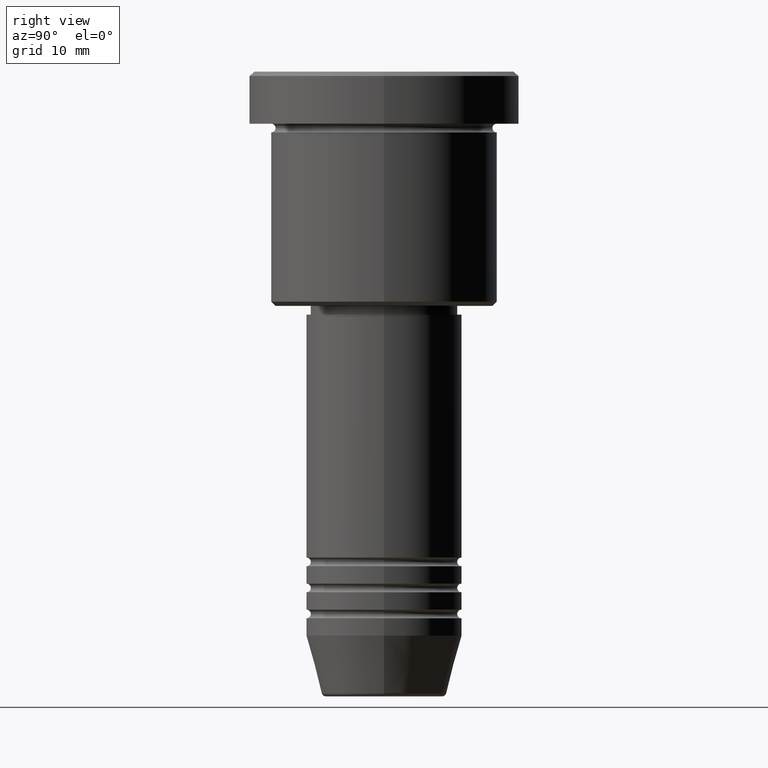
[diagram: clean part render]
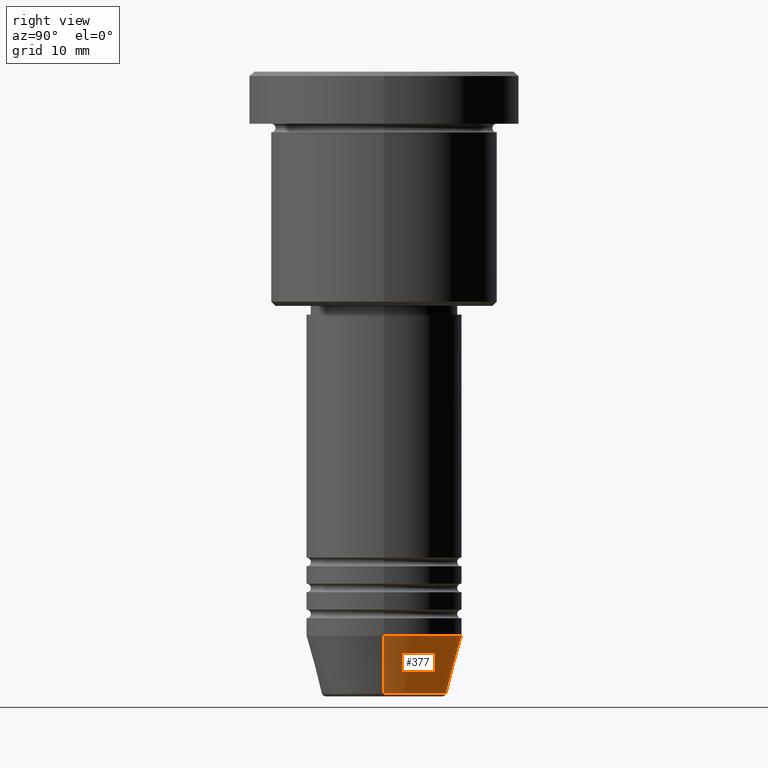
[diagram: same view with one face highlighted and labeled with its STEP entity id]
A machine part, right view. The second image highlights one B-rep face of the part: STEP entity #377.
In plain terms, the highlighted conical surface has half-angle 15 deg.
Its self-contained STEP definition (entity closure, byte-faithful):
#2 = DIRECTION ( 'NONE',  ( -0.2588190451025213501, 3.169619151431772337E-17, 0.9659258262890680902 ) ) ;
#16 = DIRECTION ( 'NONE',  ( 1.000000000000000000, 0.000000000000000000, 0.000000000000000000 ) ) ;
#70 = VECTOR ( 'NONE', #710, 1000.000000000000000 ) ;
#72 = CONICAL_SURFACE ( 'NONE', #383, 9.000000000000000000, 0.2617993877991500740 ) ;
#74 = VERTEX_POINT ( 'NONE', #444 ) ;
#96 = LINE ( 'NONE', #1170, #291 ) ;
#103 = EDGE_CURVE ( 'NONE', #534, #284, #262, .T. ) ;
#148 = ORIENTED_EDGE ( 'NONE', *, *, #755, .T. ) ;
#262 = LINE ( 'NONE', #331, #70 ) ;
#284 = VERTEX_POINT ( 'NONE', #633 ) ;
#291 = VECTOR ( 'NONE', #2, 1000.000000000000000 ) ;
#307 = DIRECTION ( 'NONE',  ( -0.000000000000000000, -0.000000000000000000, 1.000000000000000000 ) ) ;
#331 = CARTESIAN_POINT ( 'NONE',  ( 9.000000000000000000, 0.000000000000000000, -65.00000000000000000 ) ) ;
#355 = EDGE_CURVE ( 'NONE', #284, #488, #406, .T. ) ;
#377 = ADVANCED_FACE ( 'NONE', ( #568 ), #72, .T. ) ;
#383 = AXIS2_PLACEMENT_3D ( 'NONE', #844, #307, #945 ) ;
#399 = DIRECTION ( 'NONE',  ( 1.000000000000000000, 0.000000000000000000, 0.000000000000000000 ) ) ;
#406 = CIRCLE ( 'NONE', #758, 9.000000000000000000 ) ;
#419 = CARTESIAN_POINT ( 'NONE',  ( 7.223655072137188604, 0.000000000000000000, -71.62940952255127058 ) ) ;
#444 = CARTESIAN_POINT ( 'NONE',  ( -7.223655072137189492, 9.934123627281765110E-16, -71.62940952255127058 ) ) ;
#475 = DIRECTION ( 'NONE',  ( -0.000000000000000000, -0.000000000000000000, 1.000000000000000000 ) ) ;
#488 = VERTEX_POINT ( 'NONE', #658 ) ;
#534 = VERTEX_POINT ( 'NONE', #419 ) ;
#568 = FACE_OUTER_BOUND ( 'NONE', #625, .T. ) ;
#625 = EDGE_LOOP ( 'NONE', ( #789, #148, #759, #799 ) ) ;
#633 = CARTESIAN_POINT ( 'NONE',  ( 9.000000000000000000, 0.000000000000000000, -65.00000000000000000 ) ) ;
#653 = DIRECTION ( 'NONE',  ( -0.000000000000000000, -0.000000000000000000, 1.000000000000000000 ) ) ;
#658 = CARTESIAN_POINT ( 'NONE',  ( -9.000000000000000000, 1.102182119232617714E-15, -65.00000000000000000 ) ) ;
#703 = CIRCLE ( 'NONE', #1049, 7.223655072137188604 ) ;
#710 = DIRECTION ( 'NONE',  ( 0.2588190451025213501, 0.000000000000000000, 0.9659258262890680902 ) ) ;
#755 = EDGE_CURVE ( 'NONE', #74, #488, #96, .T. ) ;
#758 = AXIS2_PLACEMENT_3D ( 'NONE', #1119, #653, #399 ) ;
#759 = ORIENTED_EDGE ( 'NONE', *, *, #355, .F. ) ;
#789 = ORIENTED_EDGE ( 'NONE', *, *, #933, .T. ) ;
#799 = ORIENTED_EDGE ( 'NONE', *, *, #103, .F. ) ;
#844 = CARTESIAN_POINT ( 'NONE',  ( 0.000000000000000000, 0.000000000000000000, -65.00000000000000000 ) ) ;
#933 = EDGE_CURVE ( 'NONE', #534, #74, #703, .T. ) ;
#945 = DIRECTION ( 'NONE',  ( 1.000000000000000000, 0.000000000000000000, 0.000000000000000000 ) ) ;
#1015 = CARTESIAN_POINT ( 'NONE',  ( 0.000000000000000000, 0.000000000000000000, -71.62940952255127058 ) ) ;
#1049 = AXIS2_PLACEMENT_3D ( 'NONE', #1015, #475, #16 ) ;
#1119 = CARTESIAN_POINT ( 'NONE',  ( 0.000000000000000000, 0.000000000000000000, -65.00000000000000000 ) ) ;
#1170 = CARTESIAN_POINT ( 'NONE',  ( -9.000000000000000000, 1.102182119232617714E-15, -65.00000000000000000 ) ) ;